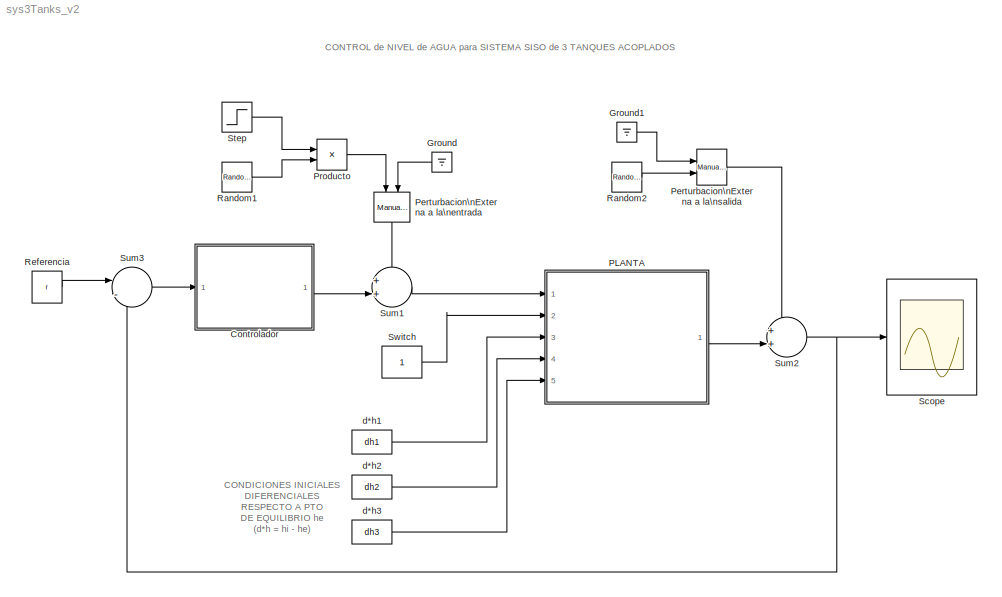
MODEL sys3Tanks_v2
KIND model
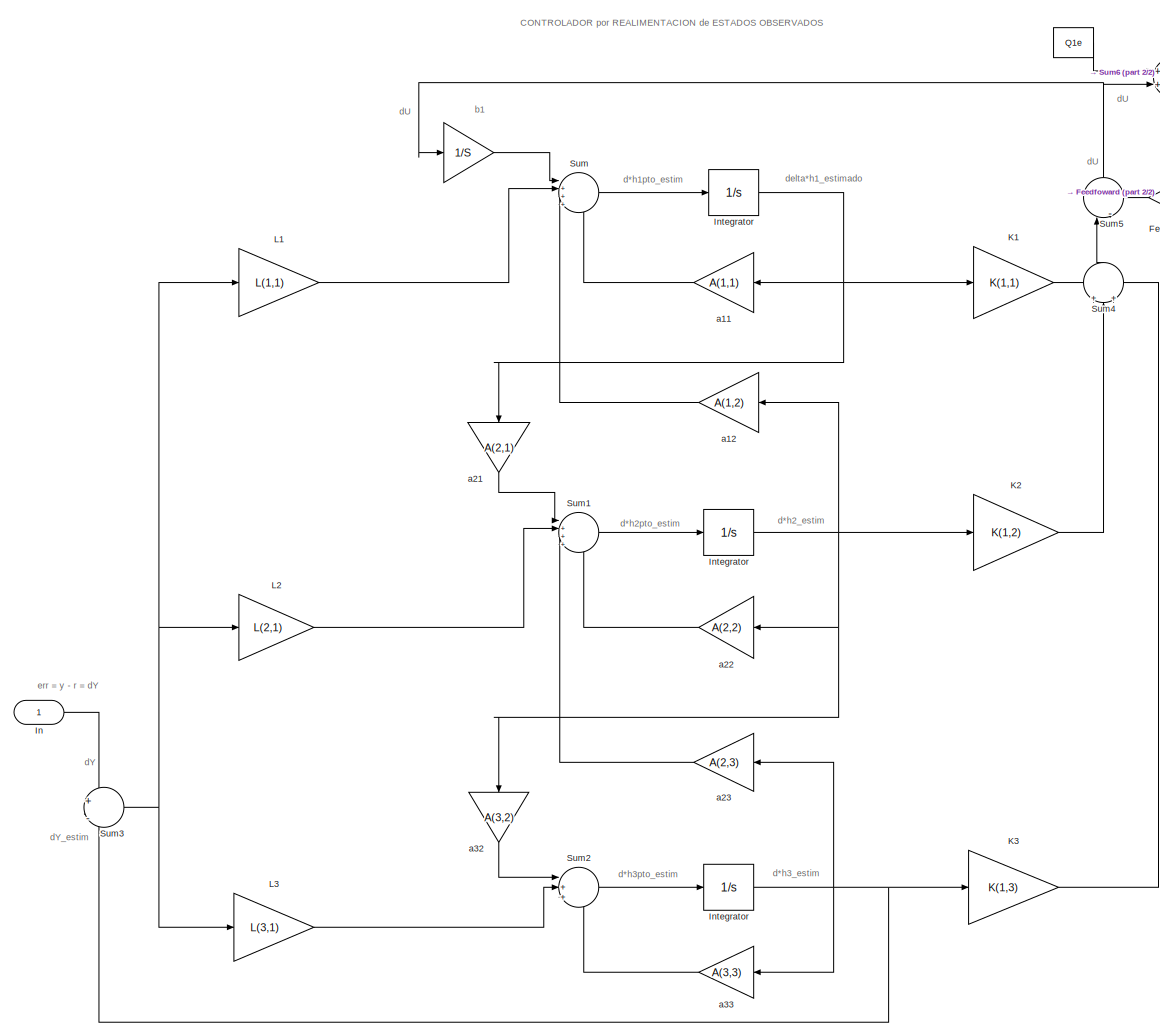
[diagram: Controlador - part 1/2, most of the canvas]
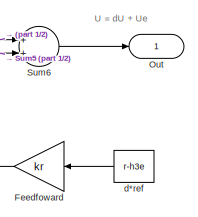
[diagram: Controlador - part 2/2, top right region]
BLOCK [SubSystem] Controlador
  FunctionWithSeparateData = off
  MaskHideContents = off
  MinAlgLoopOccurrences = off
  Opaque = off
  Ports = [1, 1]
  PropExecContextOutsideSubsystem = off
  RTWSystemCode = Auto
  RequestExecContextInheritance = off
  SID = 36
  TreatAsAtomicUnit = on
BLOCK [Constant] Controlador/ 
  SID = 104
  Value = Q1e
BLOCK [Gain] Controlador/   
  Gain = 1/S
  OutDataTypeStr = Inherit: Inherit via internal rule
  ParamDataTypeStr = Inherit: Inherit via internal rule
  SID = 73
  SaturateOnIntegerOverflow = off
BLOCK [Integrator] Controlador/ Integrator 
  Ports = [1, 1]
  SID = 77
BLOCK [Gain] Controlador/Feedfoward
  Gain = kr
  OutDataTypeStr = Inherit: Inherit via internal rule
  ParamDataTypeStr = Inherit: Inherit via internal rule
  SID = 81
  SaturateOnIntegerOverflow = off
BLOCK [Inport] Controlador/In
  IconDisplay = Port number
  SID = 37
BLOCK [Integrator] Controlador/Integrator
  Ports = [1, 1]
  SID = 75
BLOCK [Integrator] Controlador/Integrator  
  Ports = [1, 1]
  SID = 76
BLOCK [Gain] Controlador/K1
  Gain = K(1,1)
  OutDataTypeStr = Inherit: Inherit via internal rule
  ParamDataTypeStr = Inherit: Inherit via internal rule
  SID = 78
  SaturateOnIntegerOverflow = off
BLOCK [Gain] Controlador/K2
  Gain = K(1,2)
  OutDataTypeStr = Inherit: Inherit via internal rule
  ParamDataTypeStr = Inherit: Inherit via internal rule
  SID = 79
  SaturateOnIntegerOverflow = off
BLOCK [Gain] Controlador/K3
  Gain = K(1,3)
  OutDataTypeStr = Inherit: Inherit via internal rule
  ParamDataTypeStr = Inherit: Inherit via internal rule
  SID = 80
  SaturateOnIntegerOverflow = off
BLOCK [Gain] Controlador/L1
  Gain = L(1,1)
  OutDataTypeStr = Inherit: Inherit via internal rule
  ParamDataTypeStr = Inherit: Inherit via internal rule
  SID = 82
  SaturateOnIntegerOverflow = off
BLOCK [Gain] Controlador/L2
  Gain = L(2,1)
  OutDataTypeStr = Inherit: Inherit via internal rule
  ParamDataTypeStr = Inherit: Inherit via internal rule
  SID = 83
  SaturateOnIntegerOverflow = off
BLOCK [Gain] Controlador/L3
  Gain = L(3,1)
  OutDataTypeStr = Inherit: Inherit via internal rule
  ParamDataTypeStr = Inherit: Inherit via internal rule
  SID = 84
  SaturateOnIntegerOverflow = off
BLOCK [Outport] Controlador/Out
  IconDisplay = Port number
  SID = 65
BLOCK [Sum] Controlador/Sum
  IconShape = round
  InputSameDT = off
  Inputs = |++++
  OutDataTypeStr = Inherit: Inherit via internal rule
  Ports = [4, 1]
  SID = 85
  SaturateOnIntegerOverflow = off
BLOCK [Sum] Controlador/Sum1
  IconShape = round
  InputSameDT = off
  Inputs = |++++
  OutDataTypeStr = Inherit: Inherit via internal rule
  Ports = [4, 1]
  SID = 86
  SaturateOnIntegerOverflow = off
BLOCK [Sum] Controlador/Sum2
  IconShape = round
  InputSameDT = off
  Inputs = |+++
  OutDataTypeStr = Inherit: Inherit via internal rule
  Ports = [3, 1]
  SID = 87
  SaturateOnIntegerOverflow = off
BLOCK [Sum] Controlador/Sum3
  IconShape = round
  InputSameDT = off
  Inputs = +|-
  OutDataTypeStr = Inherit: Inherit via internal rule
  Ports = [2, 1]
  SID = 88
  SaturateOnIntegerOverflow = off
BLOCK [Sum] Controlador/Sum4
  IconShape = round
  InputSameDT = off
  Inputs = +|+|+
  OutDataTypeStr = Inherit: Inherit via internal rule
  Ports = [3, 1]
  SID = 89
  SaturateOnIntegerOverflow = off
BLOCK [Sum] Controlador/Sum5
  IconShape = round
  InputSameDT = off
  Inputs = |-+
  OutDataTypeStr = Inherit: Inherit via internal rule
  Ports = [2, 1]
  SID = 98
  SaturateOnIntegerOverflow = off
BLOCK [Sum] Controlador/Sum6
  IconShape = round
  InputSameDT = off
  Inputs = ++|
  OutDataTypeStr = Inherit: Inherit via internal rule
  Ports = [2, 1]
  SID = 103
  SaturateOnIntegerOverflow = off
BLOCK [Gain] Controlador/a11
  Gain = A(1,1)
  OutDataTypeStr = Inherit: Inherit via internal rule
  ParamDataTypeStr = Inherit: Inherit via internal rule
  SID = 90
  SaturateOnIntegerOverflow = off
BLOCK [Gain] Controlador/a12
  Gain = A(1,2)
  OutDataTypeStr = Inherit: Inherit via internal rule
  ParamDataTypeStr = Inherit: Inherit via internal rule
  SID = 91
  SaturateOnIntegerOverflow = off
BLOCK [Gain] Controlador/a21
  Gain = A(2,1)
  OutDataTypeStr = Inherit: Inherit via internal rule
  ParamDataTypeStr = Inherit: Inherit via internal rule
  SID = 92
  SaturateOnIntegerOverflow = off
BLOCK [Gain] Controlador/a22
  Gain = A(2,2)
  OutDataTypeStr = Inherit: Inherit via internal rule
  ParamDataTypeStr = Inherit: Inherit via internal rule
  SID = 93
  SaturateOnIntegerOverflow = off
BLOCK [Gain] Controlador/a23
  Gain = A(2,3)
  OutDataTypeStr = Inherit: Inherit via internal rule
  ParamDataTypeStr = Inherit: Inherit via internal rule
  SID = 94
  SaturateOnIntegerOverflow = off
BLOCK [Gain] Controlador/a32
  Gain = A(3,2)
  OutDataTypeStr = Inherit: Inherit via internal rule
  ParamDataTypeStr = Inherit: Inherit via internal rule
  SID = 95
  SaturateOnIntegerOverflow = off
BLOCK [Gain] Controlador/a33
  Gain = A(3,3)
  OutDataTypeStr = Inherit: Inherit via internal rule
  ParamDataTypeStr = Inherit: Inherit via internal rule
  SID = 96
  SaturateOnIntegerOverflow = off
BLOCK [Constant] Controlador/d*ref  
  SID = 100
  Value = r-h3e
BLOCK [Ground] Ground
  SID = 145
BLOCK [Ground] Ground1
  SID = 146
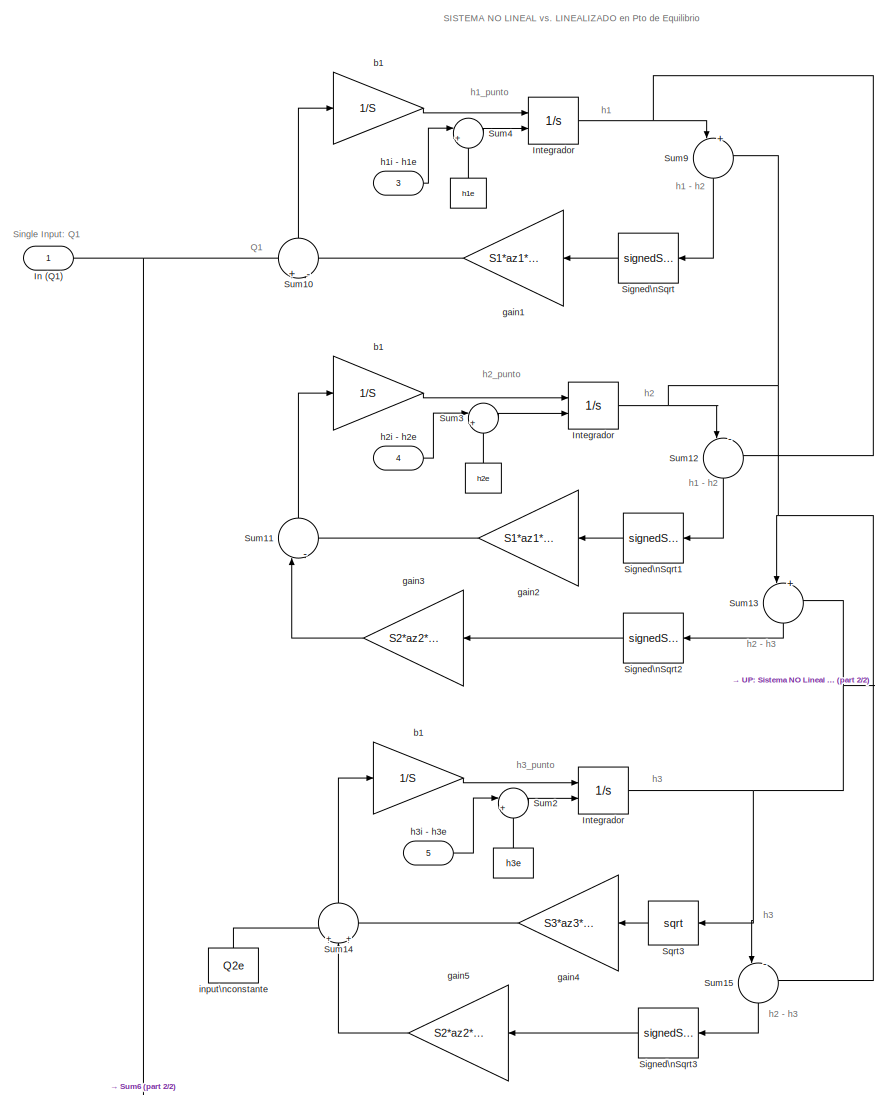
[diagram: PLANTA - part 1/2, center side, full height]
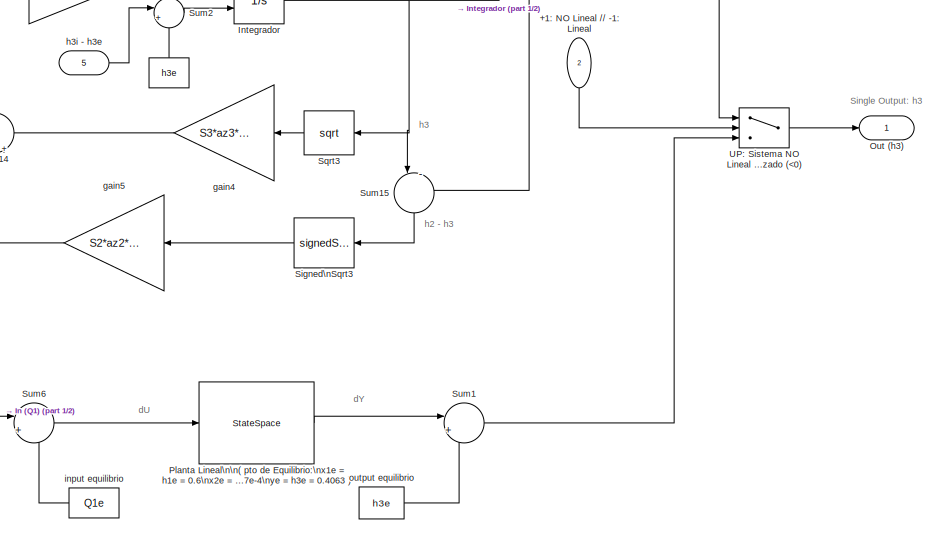
[diagram: PLANTA - part 2/2, bottom center region]
BLOCK [SubSystem] PLANTA
  FunctionWithSeparateData = off
  MaskHideContents = off
  MinAlgLoopOccurrences = off
  Opaque = off
  Ports = [5, 1]
  PropExecContextOutsideSubsystem = off
  RTWSystemCode = Auto
  RequestExecContextInheritance = off
  SID = 1
  TreatAsAtomicUnit = on
BLOCK [Constant] PLANTA/ 
  SID = 138
  Value = h1e
BLOCK [Constant] PLANTA/   
  SID = 34
  Value = h2e
BLOCK [Constant] PLANTA/     
  SID = 35
  Value = h3e
BLOCK [Integrator] PLANTA/ Integrador  
  InitialCondition = 0.406
  InitialConditionSource = external
  Ports = [2, 1]
  SID = 12
BLOCK [Gain] PLANTA/ b1 
  Gain = 1/S
  OutDataTypeStr = Inherit: Inherit via internal rule
  ParamDataTypeStr = Inherit: Inherit via internal rule
  SID = 9
  SaturateOnIntegerOverflow = off
BLOCK [Constant] PLANTA/ input\nconstante
  SID = 14
  Value = Q2e
BLOCK [Inport] PLANTA/+1: NO Lineal //// -1: Lineal
  IconDisplay = Port number
  Port = 2
  SID = 128
BLOCK [Inport] PLANTA/In (Q1)
  IconDisplay = Port number
  SID = 2
BLOCK [Integrator] PLANTA/Integrador
  InitialCondition = 0.5
  InitialConditionSource = external
  Ports = [2, 1]
  SID = 11
BLOCK [Integrator] PLANTA/Integrador 
  InitialCondition = 0.6
  InitialConditionSource = external
  Ports = [2, 1]
  SID = 10
BLOCK [Outport] PLANTA/Out (h3)
  IconDisplay = Port number
  SID = 3
BLOCK [StateSpace] PLANTA/Planta Lineal\n\n( pto de Equilibrio:\nx1e = h1e = 0.6\nx2e = h2e = 0.5\nx3e = h3e = 0.4063\nue = Q1e = 0.35787e-4\nye = h3e = 0.4063 )
  A = [-0.010464 0.010464 0; 0.010464 -0.021632 0.011168; 0 0.011168 -0.018598]
  B = [58.4795; 0; 0]
  C = [0 0 1]
  D = 0
  SID = 108
  X0 = [0; 0; 0]
BLOCK [Sqrt] PLANTA/Signed\nSqrt
  Operator = signedSqrt
  SID = 20
BLOCK [Sqrt] PLANTA/Signed\nSqrt1
  Operator = signedSqrt
  SID = 21
BLOCK [Sqrt] PLANTA/Signed\nSqrt2
  Operator = signedSqrt
  SID = 22
BLOCK [Sqrt] PLANTA/Signed\nSqrt3
  Operator = signedSqrt
  SID = 23
BLOCK [Sqrt] PLANTA/Sqrt3
  OutputSignalType = real
  SID = 24
BLOCK [Sum] PLANTA/Sum1
  IconShape = round
  InputSameDT = off
  Inputs = |++
  OutDataTypeStr = Inherit: Inherit via internal rule
  Ports = [2, 1]
  SID = 122
  SaturateOnIntegerOverflow = off
BLOCK [Sum] PLANTA/Sum10
  IconShape = round
  InputSameDT = off
  Inputs = +|-
  OutDataTypeStr = Inherit: Inherit via internal rule
  Ports = [2, 1]
  SID = 25
  SaturateOnIntegerOverflow = off
BLOCK [Sum] PLANTA/Sum11
  IconShape = round
  InputSameDT = off
  Inputs = |-+
  OutDataTypeStr = Inherit: Inherit via internal rule
  Ports = [2, 1]
  SID = 26
  SaturateOnIntegerOverflow = off
BLOCK [Sum] PLANTA/Sum12
  IconShape = round
  InputSameDT = off
  Inputs = |-+
  OutDataTypeStr = Inherit: Inherit via internal rule
  Ports = [2, 1]
  SID = 27
  SaturateOnIntegerOverflow = off
BLOCK [Sum] PLANTA/Sum13
  IconShape = round
  InputSameDT = off
  Inputs = |+-
  OutDataTypeStr = Inherit: Inherit via internal rule
  Ports = [2, 1]
  SID = 28
  SaturateOnIntegerOverflow = off
BLOCK [Sum] PLANTA/Sum14
  IconShape = round
  InputSameDT = off
  Inputs = +|+|-
  OutDataTypeStr = Inherit: Inherit via internal rule
  Ports = [3, 1]
  SID = 29
  SaturateOnIntegerOverflow = off
BLOCK [Sum] PLANTA/Sum15
  IconShape = round
  InputSameDT = off
  Inputs = |-+
  OutDataTypeStr = Inherit: Inherit via internal rule
  Ports = [2, 1]
  SID = 30
  SaturateOnIntegerOverflow = off
BLOCK [Sum] PLANTA/Sum2
  IconShape = round
  InputSameDT = off
  Inputs = |++
  OutDataTypeStr = Inherit: Inherit via internal rule
  Ports = [2, 1]
  SID = 130
  SaturateOnIntegerOverflow = off
BLOCK [Sum] PLANTA/Sum3
  IconShape = round
  InputSameDT = off
  Inputs = |++
  OutDataTypeStr = Inherit: Inherit via internal rule
  Ports = [2, 1]
  SID = 134
  SaturateOnIntegerOverflow = off
BLOCK [Sum] PLANTA/Sum4
  IconShape = round
  InputSameDT = off
  Inputs = |++
  OutDataTypeStr = Inherit: Inherit via internal rule
  Ports = [2, 1]
  SID = 137
  SaturateOnIntegerOverflow = off
BLOCK [Sum] PLANTA/Sum6
  IconShape = round
  InputSameDT = off
  Inputs = |+-
  OutDataTypeStr = Inherit: Inherit via internal rule
  Ports = [2, 1]
  SID = 120
  SaturateOnIntegerOverflow = off
BLOCK [Sum] PLANTA/Sum9
  IconShape = round
  InputSameDT = off
  Inputs = |+-
  OutDataTypeStr = Inherit: Inherit via internal rule
  Ports = [2, 1]
  SID = 32
  SaturateOnIntegerOverflow = off
BLOCK [Switch] PLANTA/UP: Sistema NO Lineal   (>=0)\nDOWN: Sistema Linealizado  (<0)
  InputSameDT = off
  SID = 126
  SaturateOnIntegerOverflow = off
BLOCK [Gain] PLANTA/b1
  Gain = 1/S
  OutDataTypeStr = Inherit: Inherit via internal rule
  ParamDataTypeStr = Inherit: Inherit via internal rule
  SID = 7
  SaturateOnIntegerOverflow = off
BLOCK [Gain] PLANTA/b1   
  Gain = 1/S
  OutDataTypeStr = Inherit: Inherit via internal rule
  ParamDataTypeStr = Inherit: Inherit via internal rule
  SID = 8
  SaturateOnIntegerOverflow = off
BLOCK [Gain] PLANTA/gain1
  Gain = S1*az1*sqrt(2*g)
  OutDataTypeStr = Inherit: Inherit via internal rule
  ParamDataTypeStr = Inherit: Inherit via internal rule
  SID = 15
  SaturateOnIntegerOverflow = off
BLOCK [Gain] PLANTA/gain2
  Gain = S1*az1*sqrt(2*g)
  OutDataTypeStr = Inherit: Inherit via internal rule
  ParamDataTypeStr = Inherit: Inherit via internal rule
  SID = 16
  SaturateOnIntegerOverflow = off
BLOCK [Gain] PLANTA/gain3
  Gain = S2*az2*sqrt(2*g)
  OutDataTypeStr = Inherit: Inherit via internal rule
  ParamDataTypeStr = Inherit: Inherit via internal rule
  SID = 17
  SaturateOnIntegerOverflow = off
BLOCK [Gain] PLANTA/gain4
  Gain = S3*az3*sqrt(2*g)
  OutDataTypeStr = Inherit: Inherit via internal rule
  ParamDataTypeStr = Inherit: Inherit via internal rule
  SID = 19
  SaturateOnIntegerOverflow = off
BLOCK [Gain] PLANTA/gain5
  Gain = S2*az2*sqrt(2*g)
  OutDataTypeStr = Inherit: Inherit via internal rule
  ParamDataTypeStr = Inherit: Inherit via internal rule
  SID = 18
  SaturateOnIntegerOverflow = off
BLOCK [Inport] PLANTA/h1i - h1e
  IconDisplay = Port number
  Port = 3
  SID = 135
BLOCK [Inport] PLANTA/h2i - h2e
  IconDisplay = Port number
  Port = 4
  SID = 133
BLOCK [Inport] PLANTA/h3i - h3e
  IconDisplay = Port number
  Port = 5
  SID = 132
BLOCK [Constant] PLANTA/input equilibrio
  SID = 119
  Value = Q1e
BLOCK [Constant] PLANTA/output equilibrio
  SID = 121
  Value = h3e
BLOCK [Reference] Perturbacion\nExterna a la\nentrada  REF=simulink/Signal\nRouting/Manual Switch
  FunctionWithSeparateData = off
  GeneratePreprocessorConditionals = off
  Ports = [2, 1]
  RTWMemSecDataConstants = Inherit from model
  RTWMemSecDataInternal = Inherit from model
  RTWMemSecDataParameters = Inherit from model
  RTWMemSecFuncExecute = Inherit from model
  RTWMemSecFuncInitTerm = Inherit from model
  SID = 118
  ShowPortLabels = FromPortIcon
  SourceBlock = simulink/Signal\nRouting/Manual Switch
  SourceType = Manual Switch
  SystemSampleTime = -1
  action = 0
  sw = 1
  varsize = off
BLOCK [Reference] Perturbacion\nExterna a la\nsalida  REF=simulink/Signal\nRouting/Manual Switch
  FunctionWithSeparateData = off
  GeneratePreprocessorConditionals = off
  Ports = [2, 1]
  RTWMemSecDataConstants = Inherit from model
  RTWMemSecDataInternal = Inherit from model
  RTWMemSecDataParameters = Inherit from model
  RTWMemSecFuncExecute = Inherit from model
  RTWMemSecFuncInitTerm = Inherit from model
  SID = 117
  ShowPortLabels = FromPortIcon
  SourceBlock = simulink/Signal\nRouting/Manual Switch
  SourceType = Manual Switch
  SystemSampleTime = -1
  action = 0
  sw = 1
  varsize = off
BLOCK [Product] Producto
  InputSameDT = off
  OutDataTypeStr = Inherit: Inherit via internal rule
  Ports = [2, 1]
  SID = 115
  SaturateOnIntegerOverflow = off
BLOCK [RandomNumber] Random1
  SID = 112
  Variance = 5e-3
BLOCK [RandomNumber] Random2
  SID = 111
  Variance = 5e-4
BLOCK [Constant] Referencia
  SID = 102
  Value = r
BLOCK [Scope] Scope
  DataFormat = StructureWithTime
  Floating = off
  LimitDataPoints = off
  NumInputPorts = 1
  Ports = [1]
  SID = 106
  SampleTime = 0
  TimeRange = 200
  YMax = 0.45
  YMin = 0
  ZoomMode = yonly
BLOCK [Step] Step
  SID = 113
  SampleTime = 0
  Time = 50
BLOCK [Sum] Sum1
  IconShape = round
  InputSameDT = off
  Inputs = ++|
  OutDataTypeStr = Inherit: Inherit via internal rule
  Ports = [2, 1]
  SID = 69
  SaturateOnIntegerOverflow = off
BLOCK [Sum] Sum2
  IconShape = round
  InputSameDT = off
  Inputs = ++|
  OutDataTypeStr = Inherit: Inherit via internal rule
  Ports = [2, 1]
  SID = 71
  SaturateOnIntegerOverflow = off
BLOCK [Sum] Sum3
  IconShape = round
  InputSameDT = off
  Inputs = |-+
  OutDataTypeStr = Inherit: Inherit via internal rule
  Ports = [2, 1]
  SID = 101
  SaturateOnIntegerOverflow = off
BLOCK [Constant] Switch
  SID = 129
BLOCK [Constant] d*h1
  SID = 139
  Value = dh1
BLOCK [Constant] d*h2
  SID = 141
  Value = dh2
BLOCK [Constant] d*h3
  SID = 142
  Value = dh3
ANNOTATION (root): CONDICIONES INICIALES\nDIFERENCIALES\nRESPECTO A PTO\nDE EQUILIBRIO he\n(d*h = hi - he)
ANNOTATION (root): CONTROL de NIVEL de AGUA para SISTEMA SISO de 3 TANQUES ACOPLADOS
ANNOTATION Controlador: CONTROLADOR por REALIMENTACION de ESTADOS OBSERVADOS
ANNOTATION Controlador: U = dU + Ue
ANNOTATION Controlador: b1
ANNOTATION Controlador: d*h1pto_estim
ANNOTATION Controlador: d*h2_estim
ANNOTATION Controlador: d*h2pto_estim
ANNOTATION Controlador: d*h3_estim
ANNOTATION Controlador: d*h3pto_estim
ANNOTATION Controlador: dU
ANNOTATION Controlador: dY
ANNOTATION Controlador: dY_estim
ANNOTATION Controlador: delta*h1_estimado
ANNOTATION Controlador: err = y - r = dY
ANNOTATION PLANTA: Q1
ANNOTATION PLANTA: SISTEMA NO LINEAL vs. LINEALIZADO en Pto de Equilibrio
ANNOTATION PLANTA: Single Input: Q1
ANNOTATION PLANTA: Single Output: h3
ANNOTATION PLANTA: dU
ANNOTATION PLANTA: dY
ANNOTATION PLANTA: h1
ANNOTATION PLANTA: h1 - h2
ANNOTATION PLANTA: h1_punto
ANNOTATION PLANTA: h2
ANNOTATION PLANTA: h2 - h3
ANNOTATION PLANTA: h2_punto
ANNOTATION PLANTA: h3
ANNOTATION PLANTA: h3_punto
LINE Controlador/   :1 -> Controlador/Sum:1
LINE Controlador/ :1 -> Controlador/Sum6:1
NET Controlador/ Integrator :1 -> Controlador/K3:1, Controlador/Sum3:2, Controlador/a23:1, Controlador/a33:1
LINE Controlador/Feedfoward:1 -> Controlador/Sum5:2
LINE Controlador/In:1 -> Controlador/Sum3:1
NET Controlador/Integrator  :1 -> Controlador/K2:1, Controlador/a12:1, Controlador/a22:1, Controlador/a32:1
NET Controlador/Integrator:1 -> Controlador/K1:1, Controlador/a11:1, Controlador/a21:1
LINE Controlador/K1:1 -> Controlador/Sum4:1
LINE Controlador/K2:1 -> Controlador/Sum4:2
LINE Controlador/K3:1 -> Controlador/Sum4:3
LINE Controlador/L1:1 -> Controlador/Sum:2
LINE Controlador/L2:1 -> Controlador/Sum1:2
LINE Controlador/L3:1 -> Controlador/Sum2:2
LINE Controlador/Sum1:1 -> Controlador/Integrator  :1
LINE Controlador/Sum2:1 -> Controlador/ Integrator :1
NET Controlador/Sum3:1 -> Controlador/L1:1, Controlador/L2:1, Controlador/L3:1
LINE Controlador/Sum4:1 -> Controlador/Sum5:1
NET Controlador/Sum5:1 -> Controlador/   :1, Controlador/Sum6:2
LINE Controlador/Sum6:1 -> Controlador/Out:1
LINE Controlador/Sum:1 -> Controlador/Integrator:1
LINE Controlador/a11:1 -> Controlador/Sum:4
LINE Controlador/a12:1 -> Controlador/Sum:3
LINE Controlador/a21:1 -> Controlador/Sum1:1
LINE Controlador/a22:1 -> Controlador/Sum1:4
LINE Controlador/a23:1 -> Controlador/Sum1:3
LINE Controlador/a32:1 -> Controlador/Sum2:1
LINE Controlador/a33:1 -> Controlador/Sum2:3
LINE Controlador/d*ref  :1 -> Controlador/Feedfoward:1
LINE Controlador:1 -> Sum1:2
LINE Ground1:1 -> Perturbacion\nExterna a la\nsalida:1
LINE Ground:1 -> Perturbacion\nExterna a la\nentrada:2
LINE PLANTA/     :1 -> PLANTA/Sum2:2
LINE PLANTA/   :1 -> PLANTA/Sum3:2
LINE PLANTA/ :1 -> PLANTA/Sum4:2
NET PLANTA/ Integrador  :1 -> PLANTA/Sqrt3:1, PLANTA/Sum13:2, PLANTA/Sum15:1, PLANTA/UP: Sistema NO Lineal   (>=0)\nDOWN: Sistema Linealizado  (<0):1
LINE PLANTA/ b1 :1 -> PLANTA/ Integrador  :1
LINE PLANTA/ input\nconstante:1 -> PLANTA/Sum14:1
LINE PLANTA/+1: NO Lineal //// -1: Lineal:1 -> PLANTA/UP: Sistema NO Lineal   (>=0)\nDOWN: Sistema Linealizado  (<0):2
NET PLANTA/In (Q1):1 -> PLANTA/Sum10:1, PLANTA/Sum6:1
NET PLANTA/Integrador :1 -> PLANTA/Sum12:2, PLANTA/Sum9:1
NET PLANTA/Integrador:1 -> PLANTA/Sum12:1, PLANTA/Sum13:1, PLANTA/Sum15:2, PLANTA/Sum9:2
LINE PLANTA/Planta Lineal\n\n( pto de Equilibrio:\nx1e = h1e = 0.6\nx2e = h2e = 0.5\nx3e = h3e = 0.4063\nue = Q1e = 0.35787e-4\nye = h3e = 0.4063 ):1 -> PLANTA/Sum1:1
LINE PLANTA/Signed\nSqrt1:1 -> PLANTA/gain2:1
LINE PLANTA/Signed\nSqrt2:1 -> PLANTA/gain3:1
LINE PLANTA/Signed\nSqrt3:1 -> PLANTA/gain5:1
LINE PLANTA/Signed\nSqrt:1 -> PLANTA/gain1:1
LINE PLANTA/Sqrt3:1 -> PLANTA/gain4:1
LINE PLANTA/Sum10:1 -> PLANTA/b1:1
LINE PLANTA/Sum11:1 -> PLANTA/b1   :1
LINE PLANTA/Sum12:1 -> PLANTA/Signed\nSqrt1:1
LINE PLANTA/Sum13:1 -> PLANTA/Signed\nSqrt2:1
LINE PLANTA/Sum14:1 -> PLANTA/ b1 :1
LINE PLANTA/Sum15:1 -> PLANTA/Signed\nSqrt3:1
LINE PLANTA/Sum1:1 -> PLANTA/UP: Sistema NO Lineal   (>=0)\nDOWN: Sistema Linealizado  (<0):3
LINE PLANTA/Sum2:1 -> PLANTA/ Integrador  :2
LINE PLANTA/Sum3:1 -> PLANTA/Integrador:2
LINE PLANTA/Sum4:1 -> PLANTA/Integrador :2
LINE PLANTA/Sum6:1 -> PLANTA/Planta Lineal\n\n( pto de Equilibrio:\nx1e = h1e = 0.6\nx2e = h2e = 0.5\nx3e = h3e = 0.4063\nue = Q1e = 0.35787e-4\nye = h3e = 0.4063 ):1
LINE PLANTA/Sum9:1 -> PLANTA/Signed\nSqrt:1
LINE PLANTA/UP: Sistema NO Lineal   (>=0)\nDOWN: Sistema Linealizado  (<0):1 -> PLANTA/Out (h3):1
LINE PLANTA/b1   :1 -> PLANTA/Integrador:1
LINE PLANTA/b1:1 -> PLANTA/Integrador :1
LINE PLANTA/gain1:1 -> PLANTA/Sum10:2
LINE PLANTA/gain2:1 -> PLANTA/Sum11:2
LINE PLANTA/gain3:1 -> PLANTA/Sum11:1
LINE PLANTA/gain4:1 -> PLANTA/Sum14:3
LINE PLANTA/gain5:1 -> PLANTA/Sum14:2
LINE PLANTA/h1i - h1e:1 -> PLANTA/Sum4:1
LINE PLANTA/h2i - h2e:1 -> PLANTA/Sum3:1
LINE PLANTA/h3i - h3e:1 -> PLANTA/Sum2:1
LINE PLANTA/input equilibrio:1 -> PLANTA/Sum6:2
LINE PLANTA/output equilibrio:1 -> PLANTA/Sum1:2
LINE PLANTA:1 -> Sum2:2
LINE Perturbacion\nExterna a la\nentrada:1 -> Sum1:1
LINE Perturbacion\nExterna a la\nsalida:1 -> Sum2:1
LINE Producto:1 -> Perturbacion\nExterna a la\nentrada:1
LINE Random1:1 -> Producto:2
LINE Random2:1 -> Perturbacion\nExterna a la\nsalida:2
LINE Referencia:1 -> Sum3:1
LINE Step:1 -> Producto:1
LINE Sum1:1 -> PLANTA:1
NET Sum2:1 -> Scope:1, Sum3:2
LINE Sum3:1 -> Controlador:1
LINE Switch:1 -> PLANTA:2
LINE d*h1:1 -> PLANTA:3
LINE d*h2:1 -> PLANTA:4
LINE d*h3:1 -> PLANTA:5
note: NET lines group one-source signal fan-out (src -> all destinations, sorted); 1:1 wires keep LINE
